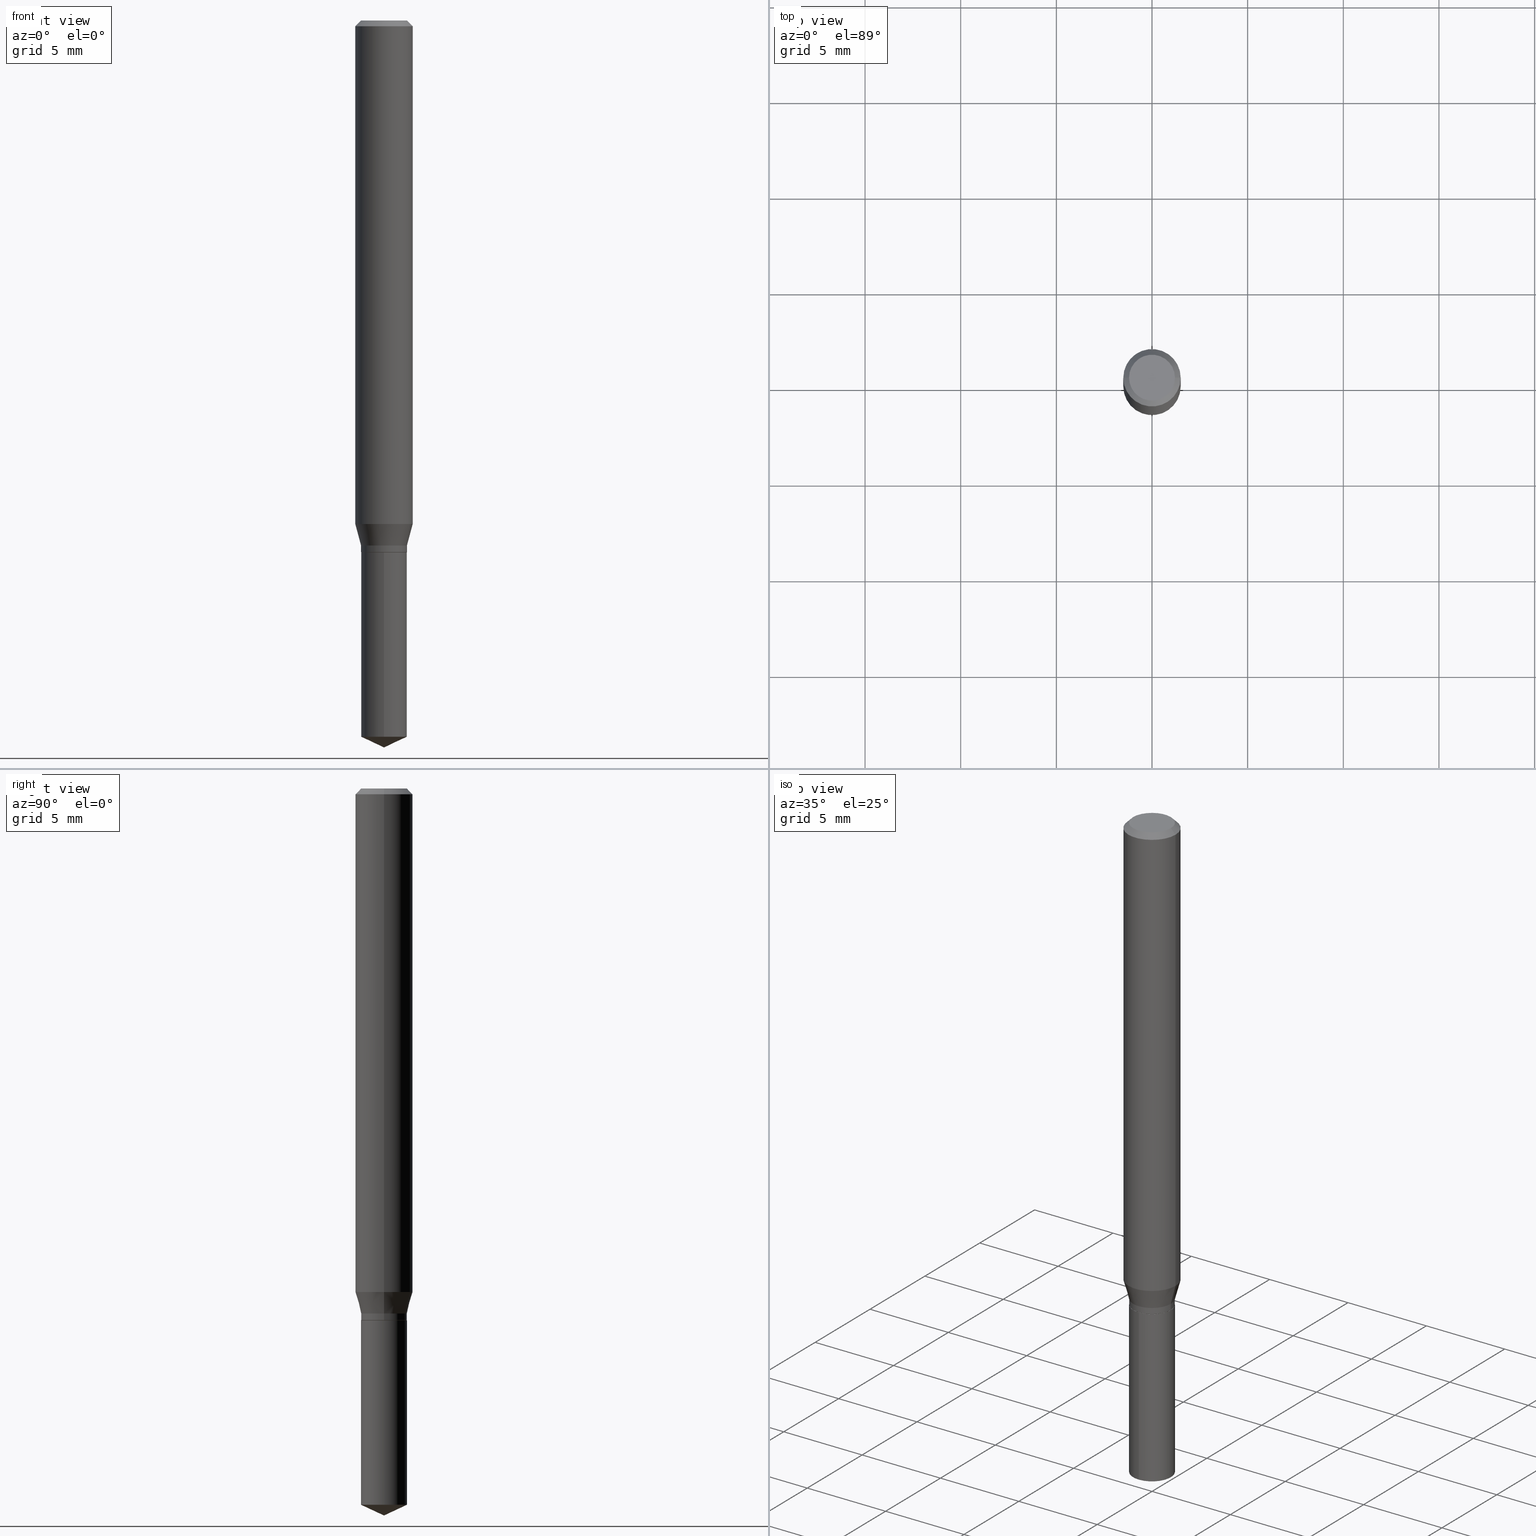
[diagram: canonical four-view strip — front | top / right | iso, engineering-drawing reading convention]
A machine part, canonical four-view strip (front | top / right | iso — engineering-drawing reading convention). The complete STEP part file that produces these views, byte-faithful:
ISO-10303-21;
HEADER;
FILE_DESCRIPTION (( 'STEP AP203' ),
    '1' );
FILE_NAME ('07648.STEP',
    '2024-04-24T00:21:22',
    ( '' ),
    ( '' ),
    'SwSTEP 2.0',
    'SolidWorks 2023',
    '' );
FILE_SCHEMA (( 'CONFIG_CONTROL_DESIGN' ));
ENDSEC;

DATA;
#1 = ORIENTED_EDGE ( 'NONE', *, *, #478, .T. ) ;
#2 = ORIENTED_EDGE ( 'NONE', *, *, #287, .T. ) ;
#3 = CC_DESIGN_PERSON_AND_ORGANIZATION_ASSIGNMENT ( #100, #97, ( #377 ) ) ;
#4 = CARTESIAN_POINT ( 'NONE',  ( -0.04724999999999999339, 3.357314426466472909E-16, -2.324196830145442815E-30 ) ) ;
#5 = ORIENTED_EDGE ( 'NONE', *, *, #89, .T. ) ;
#6 = ORIENTED_EDGE ( 'NONE', *, *, #177, .T. ) ;
#7 = CIRCLE ( 'NONE', #475, 0.05905000000000013016 ) ;
#8 = FACE_OUTER_BOUND ( 'NONE', #123, .T. ) ;
#9 = ADVANCED_FACE ( 'NONE', ( #336 ), #488, .T. ) ;
#10 = EDGE_LOOP ( 'NONE', ( #272, #6, #321, #241 ) ) ;
#11 = CARTESIAN_POINT ( 'NONE',  ( 2.534145908092310761E-29, -3.618088738499401785E-15, -1.036261800470686723 ) ) ;
#12 = PERSON_AND_ORGANIZATION_ROLE ( 'creator' ) ;
#13 = CARTESIAN_POINT ( 'NONE',  ( 3.357314426466833320E-16, 0.04724999999999485167, -1.474066963152176557 ) ) ;
#14 = VECTOR ( 'NONE', #420, 39.37007874015748143 ) ;
#15 = EDGE_CURVE ( 'NONE', #209, #184, #30, .T. ) ;
#16 = CIRCLE ( 'NONE', #333, 0.04724999999999999339 ) ;
#17 = DIRECTION ( 'NONE',  ( -2.445468806185136597E-29, 3.491481338843145583E-15, 1.000000000000000000 ) ) ;
#18 = COORDINATED_UNIVERSAL_TIME_OFFSET ( 5, 0, .BEHIND. ) ;
#19 = ORIENTED_EDGE ( 'NONE', *, *, #57, .F. ) ;
#20 = ORIENTED_EDGE ( 'NONE', *, *, #29, .T. ) ;
#21 = CARTESIAN_POINT ( 'NONE',  ( 8.265746106709734507E-48, -1.180129479067563789E-33, -3.380025165646692144E-19 ) ) ;
#22 = AXIS2_PLACEMENT_3D ( 'NONE', #194, #80, #70 ) ;
#23 = CARTESIAN_POINT ( 'NONE',  ( -0.04724999999999999339, -3.460032494876678049E-15, -1.093999999999999861 ) ) ;
#24 = CC_DESIGN_APPROVAL ( #203, ( #374 ) ) ;
#25 = ADVANCED_FACE ( 'NONE', ( #442 ), #487, .T. ) ;
#26 = EDGE_LOOP ( 'NONE', ( #229, #20, #367, #128 ) ) ;
#27 = CARTESIAN_POINT ( 'NONE',  ( 2.676565608369631794E-29, -3.821426325363822773E-15, -1.094499999999999806 ) ) ;
#28 = DIRECTION ( 'NONE',  ( -2.445468806185136597E-29, 3.491481338843145583E-15, 1.000000000000000000 ) ) ;
#29 = EDGE_CURVE ( 'NONE', #226, #209, #309, .T. ) ;
#30 = CIRCLE ( 'NONE', #317, 0.05904999999999999832 ) ;
#31 = VECTOR ( 'NONE', #110, 39.37007874015748143 ) ;
#32 = LOCAL_TIME ( 20, 21, 22.00000000000000000, #441 ) ;
#33 = FACE_OUTER_BOUND ( 'NONE', #382, .T. ) ;
#34 = DIRECTION ( 'NONE',  ( 0.7071067811865453523, -7.319954787623248157E-15, -0.7071067811865496822 ) ) ;
#35 = DIRECTION ( 'NONE',  ( 6.982962677686265922E-15, 1.000000000000000000, -3.491495526022433599E-15 ) ) ;
#36 = ORIENTED_EDGE ( 'NONE', *, *, #29, .F. ) ;
#37 = DIRECTION ( 'NONE',  ( -6.982962677686267499E-15, -1.000000000000000000, 3.520397390770475169E-15 ) ) ;
#38 = AXIS2_PLACEMENT_3D ( 'NONE', #175, #330, #472 ) ;
#39 = EDGE_CURVE ( 'NONE', #422, #184, #161, .T. ) ;
#40 = ORIENTED_EDGE ( 'NONE', *, *, #362, .F. ) ;
#41 =( CONVERSION_BASED_UNIT ( 'INCH', #44 ) LENGTH_UNIT ( ) NAMED_UNIT ( #208 ) );
#42 = CARTESIAN_POINT ( 'NONE',  ( 3.357314426466833320E-16, 0.04724999999999617006, -1.094500000000000028 ) ) ;
#43 = EDGE_LOOP ( 'NONE', ( #389, #46 ) ) ;
#44 = LENGTH_MEASURE_WITH_UNIT ( LENGTH_MEASURE( 0.02539999999999999897 ), #124 );
#45 = CYLINDRICAL_SURFACE ( 'NONE', #310, 0.04724999999999999339 ) ;
#46 = ORIENTED_EDGE ( 'NONE', *, *, #381, .F. ) ;
#47 = MECHANICAL_CONTEXT ( 'NONE', #388, 'mechanical' ) ;
#48 = ADVANCED_FACE ( 'NONE', ( #105 ), #75, .T. ) ;
#49 = CARTESIAN_POINT ( 'NONE',  ( -0.05904999999999999832, 3.711095515056362547E-16, -0.01181000000000007218 ) ) ;
#50 = ORIENTED_EDGE ( 'NONE', *, *, #39, .T. ) ;
#51 = AXIS2_PLACEMENT_3D ( 'NONE', #398, #325, #99 ) ;
#52 = AXIS2_PLACEMENT_3D ( 'NONE', #129, #213, #284 ) ;
#53 = CARTESIAN_POINT ( 'NONE',  ( 0.04674999999999999295, -4.147879830545655774E-15, -1.094499999999999806 ) ) ;
#54 = PERSON_AND_ORGANIZATION ( #357, #193 ) ;
#55 = CYLINDRICAL_SURFACE ( 'NONE', #51, 0.04724999999999999339 ) ;
#56 = CARTESIAN_POINT ( 'NONE',  ( 0.04674999999999999295, -4.147879830545655774E-15, -1.094499999999999806 ) ) ;
#57 = EDGE_CURVE ( 'NONE', #202, #235, #270, .T. ) ;
#58 = SHAPE_DEFINITION_REPRESENTATION ( #289, #463 ) ;
#59 = CC_DESIGN_PERSON_AND_ORGANIZATION_ASSIGNMENT ( #296, #12, ( #377 ) ) ;
#60 = AXIS2_PLACEMENT_3D ( 'NONE', #159, #312, #455 ) ;
#61 = CC_DESIGN_APPROVAL ( #358, ( #166 ) ) ;
#62 = CYLINDRICAL_SURFACE ( 'NONE', #250, 0.05905000000000006771 ) ;
#63 = PERSON_AND_ORGANIZATION ( #357, #193 ) ;
#64 = VERTEX_POINT ( 'NONE', #453 ) ;
#65 = DIRECTION ( 'NONE',  ( -2.445458899330790108E-29, 3.491495526022433205E-15, 1.000000000000000000 ) ) ;
#66 = DATE_AND_TIME ( #262, #32 ) ;
#67 = ORIENTED_EDGE ( 'NONE', *, *, #120, .F. ) ;
#68 = DIRECTION ( 'NONE',  ( -2.445468806185136597E-29, 3.491481338843145583E-15, 1.000000000000000000 ) ) ;
#69 = CARTESIAN_POINT ( 'NONE',  ( 2.676565608369631794E-29, -3.821426325363822773E-15, -1.094499999999999806 ) ) ;
#70 = DIRECTION ( 'NONE',  ( 1.000000000000000000, -6.982962677686266711E-15, 0.000000000000000000 ) ) ;
#71 = EDGE_CURVE ( 'NONE', #121, #88, #263, .T. ) ;
#72 = CC_DESIGN_PERSON_AND_ORGANIZATION_ASSIGNMENT ( #394, #335, ( #166 ) ) ;
#73 = ORIENTED_EDGE ( 'NONE', *, *, #354, .T. ) ;
#74 = VECTOR ( 'NONE', #34, 39.37007874015748143 ) ;
#75 = CONICAL_SURFACE ( 'NONE', #84, 0.05904999999999999832, 0.7853981633974452814 ) ;
#76 = ORIENTED_EDGE ( 'NONE', *, *, #120, .T. ) ;
#77 = CARTESIAN_POINT ( 'NONE',  ( 2.676565608369631794E-29, -3.821426325363822773E-15, -1.094499999999999806 ) ) ;
#78 = DIRECTION ( 'NONE',  ( -6.982962677686265922E-15, -1.000000000000000000, 2.890844437739961472E-15 ) ) ;
#79 = DIRECTION ( 'NONE',  ( 1.000000000000000000, -6.982962677686266711E-15, 4.876176775795936353E-29 ) ) ;
#80 = DIRECTION ( 'NONE',  ( -2.445468806185136597E-29, 3.491481338843145583E-15, 1.000000000000000000 ) ) ;
#81 = EDGE_CURVE ( 'NONE', #88, #383, #136, .T. ) ;
#82 = ORIENTED_EDGE ( 'NONE', *, *, #416, .T. ) ;
#83 = CARTESIAN_POINT ( 'NONE',  ( 2.676565608369631794E-29, -3.821426325363822773E-15, -1.094499999999999806 ) ) ;
#84 = AXIS2_PLACEMENT_3D ( 'NONE', #342, #451, #118 ) ;
#85 = ORIENTED_EDGE ( 'NONE', *, *, #277, .F. ) ;
#86 = DIRECTION ( 'NONE',  ( -6.328713451373366223E-15, -0.9063077870366481603, 0.4226182617407031605 ) ) ;
#87 = CARTESIAN_POINT ( 'NONE',  ( 0.000000000000000000, 0.000000000000000000, 0.000000000000000000 ) ) ;
#88 = VERTEX_POINT ( 'NONE', #42 ) ;
#89 = EDGE_CURVE ( 'NONE', #192, #448, #340, .T. ) ;
#90 = CARTESIAN_POINT ( 'NONE',  ( 0.04724000000000000421, -3.852183633974369345E-16, -3.380025165621689721E-19 ) ) ;
#91 = ORIENTED_EDGE ( 'NONE', *, *, #195, .T. ) ;
#92 = PERSON_AND_ORGANIZATION ( #357, #193 ) ;
#93 = FACE_OUTER_BOUND ( 'NONE', #338, .T. ) ;
#94 = AXIS2_PLACEMENT_3D ( 'NONE', #481, #413, #116 ) ;
#95 = AXIS2_PLACEMENT_3D ( 'NONE', #21, #298, #437 ) ;
#96 = LINE ( 'NONE', #457, #376 ) ;
#97 = PERSON_AND_ORGANIZATION_ROLE ( 'design_supplier' ) ;
#98 = SECURITY_CLASSIFICATION_LEVEL ( 'unclassified' ) ;
#99 = DIRECTION ( 'NONE',  ( -6.982962677686265922E-15, -1.000000000000000000, 2.890844437739961472E-15 ) ) ;
#100 = PERSON_AND_ORGANIZATION ( #357, #193 ) ;
#101 = VECTOR ( 'NONE', #476, 39.37007874015748143 ) ;
#102 = AXIS2_PLACEMENT_3D ( 'NONE', #77, #236, #35 ) ;
#103 = CARTESIAN_POINT ( 'NONE',  ( 2.888098660104664204E-31, -4.123439461173780263E-17, -0.01181000000000007218 ) ) ;
#104 = EDGE_CURVE ( 'NONE', #422, #64, #347, .T. ) ;
#105 = FACE_OUTER_BOUND ( 'NONE', #26, .T. ) ;
#106 = DIRECTION ( 'NONE',  ( -2.445458899330790108E-29, 3.491495526022433205E-15, 1.000000000000000000 ) ) ;
#107 = DIRECTION ( 'NONE',  ( 1.000000000000000000, -6.982962677686265922E-15, 4.876176775795935793E-29 ) ) ;
#108 = AXIS2_PLACEMENT_3D ( 'NONE', #204, #207, #249 ) ;
#109 = APPROVAL_PERSON_ORGANIZATION ( #63, #468, #331 ) ;
#110 = DIRECTION ( 'NONE',  ( -2.445468806185136877E-29, 3.491481338843145188E-15, 1.000000000000000000 ) ) ;
#111 = CC_DESIGN_PERSON_AND_ORGANIZATION_ASSIGNMENT ( #134, #294, ( #374 ) ) ;
#112 = CARTESIAN_POINT ( 'NONE',  ( 2.641839951321803071E-29, -3.771847290352249705E-15, -1.080300000000000038 ) ) ;
#113 = ORIENTED_EDGE ( 'NONE', *, *, #248, .T. ) ;
#114 = ORIENTED_EDGE ( 'NONE', *, *, #471, .T. ) ;
#115 = DIRECTION ( 'NONE',  ( -0.7071067811865232589, 7.493145998870265808E-15, 0.7071067811865715536 ) ) ;
#116 = DIRECTION ( 'NONE',  ( -6.982962677686265922E-15, -1.000000000000000000, 5.781688875479922944E-15 ) ) ;
#117 = VECTOR ( 'NONE', #217, 39.37007874015748854 ) ;
#118 = DIRECTION ( 'NONE',  ( -1.000000000000000000, 6.982962677686266711E-15, 0.000000000000000000 ) ) ;
#119 = PLANE ( 'NONE',  #160 ) ;
#120 = EDGE_CURVE ( 'NONE', #64, #209, #122, .T. ) ;
#121 = VERTEX_POINT ( 'NONE', #13 ) ;
#122 = LINE ( 'NONE', #290, #126 ) ;
#123 = EDGE_LOOP ( 'NONE', ( #36, #405, #154, #73 ) ) ;
#124 =( LENGTH_UNIT ( ) NAMED_UNIT ( * ) SI_UNIT ( $, .METRE. ) );
#125 = DIRECTION ( 'NONE',  ( -0.2588190451025211281, 5.211531920934548675E-15, 0.9659258262890682012 ) ) ;
#126 = VECTOR ( 'NONE', #214, 39.37007874015748143 ) ;
#127 = APPROVAL_PERSON_ORGANIZATION ( #92, #203, #431 ) ;
#128 = ORIENTED_EDGE ( 'NONE', *, *, #138, .F. ) ;
#129 = CARTESIAN_POINT ( 'NONE',  ( 0.000000000000000000, 0.000000000000000000, 0.000000000000000000 ) ) ;
#130 = FACE_OUTER_BOUND ( 'NONE', #201, .T. ) ;
#131 = EDGE_LOOP ( 'NONE', ( #456, #351, #2, #428 ) ) ;
#132 = PERSON_AND_ORGANIZATION ( #357, #193 ) ;
#133 = DIRECTION ( 'NONE',  ( 1.000000000000000000, -6.982962677686265133E-15, 0.000000000000000000 ) ) ;
#134 = PERSON_AND_ORGANIZATION ( #357, #193 ) ;
#135 = CARTESIAN_POINT ( 'NONE',  ( 0.000000000000000000, 0.000000000000000000, 0.000000000000000000 ) ) ;
#136 = CIRCLE ( 'NONE', #363, 0.04724999999999999339 ) ;
#137 =( GEOMETRIC_REPRESENTATION_CONTEXT ( 3 ) GLOBAL_UNCERTAINTY_ASSIGNED_CONTEXT ( ( #224 ) ) GLOBAL_UNIT_ASSIGNED_CONTEXT ( ( #41, #348, #322 ) ) REPRESENTATION_CONTEXT ( 'NONE', 'WORKASPACE' ) );
#138 = EDGE_CURVE ( 'NONE', #212, #184, #172, .T. ) ;
#139 = PRODUCT_RELATED_PRODUCT_CATEGORY ( 'detail', '', ( #219 ) ) ;
#140 = DATE_TIME_ROLE ( 'classification_date' ) ;
#141 = DIRECTION ( 'NONE',  ( 1.000000000000000000, -6.982962677686266711E-15, 4.876176775795936353E-29 ) ) ;
#142 = EDGE_CURVE ( 'NONE', #212, #226, #199, .T. ) ;
#143 = APPROVAL_DATE_TIME ( #220, #468 ) ;
#144 = AXIS2_PLACEMENT_3D ( 'NONE', #153, #418, #78 ) ;
#145 = EDGE_LOOP ( 'NONE', ( #1, #167 ) ) ;
#146 = DIRECTION ( 'NONE',  ( -2.445458899330790108E-29, 3.491495526022433205E-15, 1.000000000000000000 ) ) ;
#147 = CARTESIAN_POINT ( 'NONE',  ( -0.05905000000000013016, -3.198513253033061503E-15, -1.036261800470686723 ) ) ;
#148 = ADVANCED_FACE ( 'NONE', ( #8 ), #399, .T. ) ;
#149 = FACE_OUTER_BOUND ( 'NONE', #43, .T. ) ;
#150 = CIRCLE ( 'NONE', #108, 0.04724999999999999339 ) ;
#151 = CONICAL_SURFACE ( 'NONE', #300, 0.04674999999999999295, 0.7853981633974141952 ) ;
#152 = DIRECTION ( 'NONE',  ( 0.2588190451025211281, 1.565188264969623940E-15, 0.9659258262890682012 ) ) ;
#153 = CARTESIAN_POINT ( 'NONE',  ( 2.676565608369631794E-29, -3.821426325363822773E-15, -1.094499999999999806 ) ) ;
#154 = ORIENTED_EDGE ( 'NONE', *, *, #138, .T. ) ;
#155 = EDGE_CURVE ( 'NONE', #261, #286, #150, .T. ) ;
#156 = CARTESIAN_POINT ( 'NONE',  ( 2.676565608369631794E-29, -3.821426325363822773E-15, -1.094499999999999806 ) ) ;
#157 = AXIS2_PLACEMENT_3D ( 'NONE', #257, #17, #178 ) ;
#158 = AXIS2_PLACEMENT_3D ( 'NONE', #343, #380, #230 ) ;
#159 = CARTESIAN_POINT ( 'NONE',  ( 2.675342873966538993E-29, -3.819680584694400481E-15, -1.093999999999999861 ) ) ;
#160 = AXIS2_PLACEMENT_3D ( 'NONE', #480, #304, #479 ) ;
#161 = LINE ( 'NONE', #301, #101 ) ;
#162 = ORIENTED_EDGE ( 'NONE', *, *, #478, .F. ) ;
#163 = DIRECTION ( 'NONE',  ( 1.000000000000000000, -6.982962677686266711E-15, 0.000000000000000000 ) ) ;
#164 = ORIENTED_EDGE ( 'NONE', *, *, #104, .T. ) ;
#165 = CIRCLE ( 'NONE', #438, 0.04724999999999999339 ) ;
#166 = SECURITY_CLASSIFICATION ( '', '', #98 ) ;
#167 = ORIENTED_EDGE ( 'NONE', *, *, #81, .T. ) ;
#168 = LINE ( 'NONE', #4, #423 ) ;
#169 = ORIENTED_EDGE ( 'NONE', *, *, #313, .T. ) ;
#170 = CARTESIAN_POINT ( 'NONE',  ( 0.05904999999999999832, -4.535783407291118600E-16, -0.01181000000000007218 ) ) ;
#171 = APPROVAL_ROLE ( '' ) ;
#172 = LINE ( 'NONE', #49, #407 ) ;
#173 = AXIS2_PLACEMENT_3D ( 'NONE', #69, #447, #375 ) ;
#174 = CALENDAR_DATE ( 2024, 23, 4 ) ;
#175 = CARTESIAN_POINT ( 'NONE',  ( -9.261924752013118283E-28, 1.322368428517963298E-13, 37.87397874015748300 ) ) ;
#176 = CALENDAR_DATE ( 2024, 23, 4 ) ;
#177 = EDGE_CURVE ( 'NONE', #235, #286, #168, .T. ) ;
#178 = DIRECTION ( 'NONE',  ( 1.000000000000000000, -6.982962677686266711E-15, 0.000000000000000000 ) ) ;
#179 = CALENDAR_DATE ( 2024, 23, 4 ) ;
#180 = CARTESIAN_POINT ( 'NONE',  ( 0.04724999999999999339, -3.299449865206760567E-16, 2.303993526563579480E-30 ) ) ;
#181 = ORIENTED_EDGE ( 'NONE', *, *, #71, .F. ) ;
#182 = DATE_AND_TIME ( #174, #440 ) ;
#183 = ORIENTED_EDGE ( 'NONE', *, *, #346, .T. ) ;
#184 = VERTEX_POINT ( 'NONE', #421 ) ;
#185 = ORIENTED_EDGE ( 'NONE', *, *, #362, .T. ) ;
#186 = DIRECTION ( 'NONE',  ( -6.982962677686265922E-15, -1.000000000000000000, 5.781688875479922944E-15 ) ) ;
#187 = EDGE_CURVE ( 'NONE', #64, #422, #7, .T. ) ;
#188 = CARTESIAN_POINT ( 'NONE',  ( 0.04724999999999999339, -4.101792276872925713E-15, -1.080300000000000038 ) ) ;
#189 = DESIGN_CONTEXT ( 'detailed design', #222, 'design' ) ;
#190 = DIRECTION ( 'NONE',  ( 1.000000000000000000, -6.982962677686266711E-15, 0.000000000000000000 ) ) ;
#191 = AXIS2_PLACEMENT_3D ( 'NONE', #135, #240, #253 ) ;
#192 = VERTEX_POINT ( 'NONE', #53 ) ;
#193 = ORGANIZATION ( 'UNSPECIFIED', 'UNSPECIFIED', '' ) ;
#194 = CARTESIAN_POINT ( 'NONE',  ( 2.641839951321803071E-29, -3.771847290352249705E-15, -1.080300000000000038 ) ) ;
#195 = EDGE_CURVE ( 'NONE', #286, #422, #96, .T. ) ;
#196 = EDGE_LOOP ( 'NONE', ( #412, #114, #283 ) ) ;
#197 = FACE_OUTER_BOUND ( 'NONE', #279, .T. ) ;
#198 = CARTESIAN_POINT ( 'NONE',  ( -9.261924752013118283E-28, 1.322368428517963298E-13, 37.87397874015748300 ) ) ;
#199 = CIRCLE ( 'NONE', #482, 0.04724000000000000421 ) ;
#200 = LOCAL_TIME ( 20, 21, 22.00000000000000000, #18 ) ;
#201 = EDGE_LOOP ( 'NONE', ( #391, #164, #76, #414 ) ) ;
#202 = VERTEX_POINT ( 'NONE', #361 ) ;
#203 = APPROVAL ( #247, 'UNSPECIFIED' ) ;
#204 = CARTESIAN_POINT ( 'NONE',  ( 2.641839951321803071E-29, -3.771847290352249705E-15, -1.080300000000000038 ) ) ;
#205 = ORIENTED_EDGE ( 'NONE', *, *, #15, .F. ) ;
#206 = CC_DESIGN_DATE_AND_TIME_ASSIGNMENT ( #66, #140, ( #166 ) ) ;
#207 = DIRECTION ( 'NONE',  ( -2.445468806185136597E-29, 3.491481338843145583E-15, 1.000000000000000000 ) ) ;
#208 = DIMENSIONAL_EXPONENTS ( 1.000000000000000000, 0.000000000000000000, 0.000000000000000000, 0.000000000000000000, 0.000000000000000000, 0.000000000000000000, 0.000000000000000000 ) ;
#209 = VERTEX_POINT ( 'NONE', #170 ) ;
#210 = DIRECTION ( 'NONE',  ( 6.439704144417022464E-15, 0.9063077870366512689, 0.4226182617406968323 ) ) ;
#211 = CONICAL_SURFACE ( 'NONE', #371, 0.04724999999999999339, 0.2617993877991497964 ) ;
#212 = VERTEX_POINT ( 'NONE', #467 ) ;
#213 = DIRECTION ( 'NONE',  ( 0.000000000000000000, 0.000000000000000000, 1.000000000000000000 ) ) ;
#214 = DIRECTION ( 'NONE',  ( -2.445468806185136877E-29, 3.491481338843145188E-15, 1.000000000000000000 ) ) ;
#215 = ADVANCED_FACE ( 'NONE', ( #130 ), #427, .T. ) ;
#216 = COORDINATED_UNIVERSAL_TIME_OFFSET ( 5, 0, .BEHIND. ) ;
#217 = DIRECTION ( 'NONE',  ( 0.7071067811865232589, -2.468850131082003836E-15, 0.7071067811865715536 ) ) ;
#218 = CC_DESIGN_DATE_AND_TIME_ASSIGNMENT ( #182, #473, ( #374 ) ) ;
#219 = PRODUCT ( '07648', '07648', '', ( #47 ) ) ;
#220 = DATE_AND_TIME ( #291, #281 ) ;
#221 = ADVANCED_FACE ( 'NONE', ( #282 ), #45, .T. ) ;
#222 = APPLICATION_CONTEXT ( 'configuration controlled 3d designs of mechanical parts and assemblies' ) ;
#223 = CARTESIAN_POINT ( 'NONE',  ( 0.000000000000000000, 0.000000000000000000, 0.000000000000000000 ) ) ;
#224 = UNCERTAINTY_MEASURE_WITH_UNIT (LENGTH_MEASURE( 1.000000000000000082E-05 ), #41, 'distance_accuracy_value', 'NONE');
#225 = LINE ( 'NONE', #180, #31 ) ;
#226 = VERTEX_POINT ( 'NONE', #90 ) ;
#227 = AXIS2_PLACEMENT_3D ( 'NONE', #419, #350, #79 ) ;
#228 = CONICAL_SURFACE ( 'NONE', #22, 0.04724999999999999339, 0.2617993877991497964 ) ;
#229 = ORIENTED_EDGE ( 'NONE', *, *, #346, .F. ) ;
#230 = DIRECTION ( 'NONE',  ( 1.000000000000000000, -6.982962677686266711E-15, 0.000000000000000000 ) ) ;
#231 = EDGE_CURVE ( 'NONE', #426, #121, #245, .T. ) ;
#232 = AXIS2_PLACEMENT_3D ( 'NONE', #83, #387, #163 ) ;
#233 = EDGE_CURVE ( 'NONE', #192, #202, #359, .T. ) ;
#234 = ORIENTED_EDGE ( 'NONE', *, *, #416, .F. ) ;
#235 = VERTEX_POINT ( 'NONE', #23 ) ;
#236 = DIRECTION ( 'NONE',  ( 2.445458899330789267E-29, -3.491495526022433599E-15, -1.000000000000000000 ) ) ;
#237 = CARTESIAN_POINT ( 'NONE',  ( 2.888098660104664204E-31, -4.123439461173780263E-17, -0.01181000000000007218 ) ) ;
#238 = ORIENTED_EDGE ( 'NONE', *, *, #233, .T. ) ;
#239 = LOCAL_TIME ( 20, 21, 22.00000000000000000, #366 ) ;
#240 = DIRECTION ( 'NONE',  ( -2.445468806185136597E-29, 3.491481338843145583E-15, 1.000000000000000000 ) ) ;
#241 = ORIENTED_EDGE ( 'NONE', *, *, #287, .F. ) ;
#242 = DIRECTION ( 'NONE',  ( -6.982962677686265922E-15, -1.000000000000000000, 2.890844437739961472E-15 ) ) ;
#243 = ORIENTED_EDGE ( 'NONE', *, *, #71, .T. ) ;
#244 = CARTESIAN_POINT ( 'NONE',  ( 3.658651059288795076E-29, -5.223626456482161457E-15, -1.496099999999999985 ) ) ;
#245 = LINE ( 'NONE', #390, #469 ) ;
#246 = ORIENTED_EDGE ( 'NONE', *, *, #195, .F. ) ;
#247 = APPROVAL_STATUS ( 'not_yet_approved' ) ;
#248 = EDGE_CURVE ( 'NONE', #121, #316, #165, .T. ) ;
#249 = DIRECTION ( 'NONE',  ( 1.000000000000000000, -6.982962677686266711E-15, 0.000000000000000000 ) ) ;
#250 = AXIS2_PLACEMENT_3D ( 'NONE', #223, #474, #141 ) ;
#251 = MANIFOLD_SOLID_BREP ( 'Body-Move/Copy2[2]', #458 ) ;
#252 = APPROVAL_STATUS ( 'not_yet_approved' ) ;
#253 = DIRECTION ( 'NONE',  ( 1.000000000000000000, -6.982962677686266711E-15, 4.876176775795936353E-29 ) ) ;
#254 = DATE_AND_TIME ( #176, #239 ) ;
#255 = CARTESIAN_POINT ( 'NONE',  ( 0.04724999999999999339, -4.101792276872925713E-15, -1.080300000000000038 ) ) ;
#256 = FACE_OUTER_BOUND ( 'NONE', #268, .T. ) ;
#257 = CARTESIAN_POINT ( 'NONE',  ( 2.675342873966538993E-29, -3.819680584694400481E-15, -1.093999999999999861 ) ) ;
#258 = VECTOR ( 'NONE', #260, 39.37007874015748143 ) ;
#259 = VECTOR ( 'NONE', #115, 39.37007874015748854 ) ;
#260 = DIRECTION ( 'NONE',  ( -2.445458899330790108E-29, 3.491495526022433599E-15, 1.000000000000000000 ) ) ;
#261 = VERTEX_POINT ( 'NONE', #255 ) ;
#262 = CALENDAR_DATE ( 2024, 23, 4 ) ;
#263 = LINE ( 'NONE', #275, #14 ) ;
#264 = ADVANCED_FACE ( 'NONE', ( #364 ), #280, .T. ) ;
#265 = LINE ( 'NONE', #339, #259 ) ;
#266 = EDGE_CURVE ( 'NONE', #235, #202, #460, .T. ) ;
#267 = ORIENTED_EDGE ( 'NONE', *, *, #471, .F. ) ;
#268 = EDGE_LOOP ( 'NONE', ( #459, #50, #205, #67 ) ) ;
#269 = FACE_OUTER_BOUND ( 'NONE', #145, .T. ) ;
#270 = CIRCLE ( 'NONE', #60, 0.04724999999999999339 ) ;
#271 = CONICAL_SURFACE ( 'NONE', #400, 0.04674999999999999295, 0.7853981633974141952 ) ;
#272 = ORIENTED_EDGE ( 'NONE', *, *, #57, .T. ) ;
#273 = DIRECTION ( 'NONE',  ( -2.445458899330790108E-29, 3.491495526022433205E-15, 1.000000000000000000 ) ) ;
#274 = FACE_OUTER_BOUND ( 'NONE', #353, .T. ) ;
#275 = CARTESIAN_POINT ( 'NONE',  ( 3.357314426466740136E-16, 0.04724999999999617006, -1.094500000000000028 ) ) ;
#276 = CARTESIAN_POINT ( 'NONE',  ( 2.676565608369631794E-29, -3.821426325363822773E-15, -1.094499999999999806 ) ) ;
#277 = EDGE_CURVE ( 'NONE', #316, #383, #299, .T. ) ;
#278 = DIRECTION ( 'NONE',  ( -1.000000000000000000, 6.982962677686266711E-15, 0.000000000000000000 ) ) ;
#279 = EDGE_LOOP ( 'NONE', ( #5, #82, #19, #307 ) ) ;
#280 = CONICAL_SURFACE ( 'NONE', #38, 84.42940631927382356, 1.134464013796313564 ) ;
#281 = LOCAL_TIME ( 20, 21, 22.00000000000000000, #397 ) ;
#282 = FACE_OUTER_BOUND ( 'NONE', #131, .T. ) ;
#283 = ORIENTED_EDGE ( 'NONE', *, *, #248, .F. ) ;
#284 = DIRECTION ( 'NONE',  ( 1.000000000000000000, 0.000000000000000000, 0.000000000000000000 ) ) ;
#285 = DIRECTION ( 'NONE',  ( 1.000000000000000000, -6.982962677686266711E-15, 4.876176775795936353E-29 ) ) ;
#286 = VERTEX_POINT ( 'NONE', #403 ) ;
#287 = EDGE_CURVE ( 'NONE', #202, #261, #225, .T. ) ;
#288 = PERSON_AND_ORGANIZATION_ROLE ( 'design_owner' ) ;
#289 = PRODUCT_DEFINITION_SHAPE ( 'NONE', 'NONE',  #374 ) ;
#290 = CARTESIAN_POINT ( 'NONE',  ( 0.05905000000000006771, -4.123439461173745257E-16, 2.879382386107503723E-30 ) ) ;
#291 = CALENDAR_DATE ( 2024, 23, 4 ) ;
#292 = AXIS2_PLACEMENT_3D ( 'NONE', #198, #146, #37 ) ;
#293 = CARTESIAN_POINT ( 'NONE',  ( 2.534145908092310761E-29, -3.618088738499401785E-15, -1.036261800470686723 ) ) ;
#294 = PERSON_AND_ORGANIZATION_ROLE ( 'creator' ) ;
#295 = ADVANCED_FACE ( 'NONE', ( #409 ), #344, .T. ) ;
#296 = PERSON_AND_ORGANIZATION ( #357, #193 ) ;
#297 = APPROVAL_STATUS ( 'not_yet_approved' ) ;
#298 = DIRECTION ( 'NONE',  ( -2.445468806185136597E-29, 3.491481338843145583E-15, 1.000000000000000000 ) ) ;
#299 = LINE ( 'NONE', #439, #258 ) ;
#300 = AXIS2_PLACEMENT_3D ( 'NONE', #406, #308, #450 ) ;
#301 = CARTESIAN_POINT ( 'NONE',  ( -0.05905000000000006771, 4.195754854663396409E-16, -2.904631170795525045E-30 ) ) ;
#302 = EDGE_LOOP ( 'NONE', ( #181, #113, #379, #320 ) ) ;
#303 = CC_DESIGN_SECURITY_CLASSIFICATION ( #166, ( #377 ) ) ;
#304 = DIRECTION ( 'NONE',  ( 2.438088387897960049E-29, -3.491481338843145188E-15, -1.000000000000000000 ) ) ;
#305 = ADVANCED_FACE ( 'NONE', ( #274 ), #228, .T. ) ;
#306 = FACE_OUTER_BOUND ( 'NONE', #314, .T. ) ;
#307 = ORIENTED_EDGE ( 'NONE', *, *, #233, .F. ) ;
#308 = DIRECTION ( 'NONE',  ( -2.445468806185136597E-29, 3.491481338843145583E-15, 1.000000000000000000 ) ) ;
#309 = LINE ( 'NONE', #334, #74 ) ;
#310 = AXIS2_PLACEMENT_3D ( 'NONE', #87, #395, #285 ) ;
#311 = CARTESIAN_POINT ( 'NONE',  ( -0.04674999999999999295, -3.486598369221864243E-15, -1.094499999999999806 ) ) ;
#312 = DIRECTION ( 'NONE',  ( -2.445468806185136597E-29, 3.491481338843145583E-15, 1.000000000000000000 ) ) ;
#313 = EDGE_CURVE ( 'NONE', #316, #121, #356, .T. ) ;
#314 = EDGE_LOOP ( 'NONE', ( #234, #345, #238, #386 ) ) ;
#315 = EDGE_LOOP ( 'NONE', ( #267, #444, #402 ) ) ;
#316 = VERTEX_POINT ( 'NONE', #349 ) ;
#317 = AXIS2_PLACEMENT_3D ( 'NONE', #237, #485, #477 ) ;
#318 = DIRECTION ( 'NONE',  ( -0.7071067811865453523, 2.468850131082234184E-15, -0.7071067811865496822 ) ) ;
#319 = ADVANCED_FACE ( 'NONE', ( #93 ), #55, .T. ) ;
#320 = ORIENTED_EDGE ( 'NONE', *, *, #81, .F. ) ;
#321 = ORIENTED_EDGE ( 'NONE', *, *, #155, .F. ) ;
#322 =( NAMED_UNIT ( * ) SI_UNIT ( $, .STERADIAN. ) SOLID_ANGLE_UNIT ( ) );
#323 = DIRECTION ( 'NONE',  ( 1.000000000000000000, -6.982962677686266711E-15, 4.876185090822587894E-29 ) ) ;
#324 = CC_DESIGN_PERSON_AND_ORGANIZATION_ASSIGNMENT ( #132, #288, ( #219 ) ) ;
#325 = DIRECTION ( 'NONE',  ( -2.445458899330790108E-29, 3.491495526022433205E-15, 1.000000000000000000 ) ) ;
#326 = CLOSED_SHELL ( 'NONE', ( #319, #264, #25, #295, #449 ) ) ;
#327 = AXIS2_PLACEMENT_3D ( 'NONE', #352, #434, #278 ) ;
#328 = DIRECTION ( 'NONE',  ( -2.445468806185136597E-29, 3.491481338843145583E-15, 1.000000000000000000 ) ) ;
#329 = CIRCLE ( 'NONE', #158, 0.04724999999999999339 ) ;
#330 = DIRECTION ( 'NONE',  ( -2.445458899330790108E-29, 3.491495526022433205E-15, 1.000000000000000000 ) ) ;
#331 = APPROVAL_ROLE ( '' ) ;
#332 = ADVANCED_FACE ( 'NONE', ( #256 ), #62, .T. ) ;
#333 = AXIS2_PLACEMENT_3D ( 'NONE', #276, #273, #242 ) ;
#334 = CARTESIAN_POINT ( 'NONE',  ( 0.05904999999999999832, -4.463468013801466955E-16, -0.01181000000000007218 ) ) ;
#335 = PERSON_AND_ORGANIZATION_ROLE ( 'classification_officer' ) ;
#336 = FACE_OUTER_BOUND ( 'NONE', #10, .T. ) ;
#337 = FACE_OUTER_BOUND ( 'NONE', #465, .T. ) ;
#338 = EDGE_LOOP ( 'NONE', ( #169, #243, #162, #85 ) ) ;
#339 = CARTESIAN_POINT ( 'NONE',  ( -0.04674999999999999295, -3.489247596395975839E-15, -1.094499999999999806 ) ) ;
#340 = CIRCLE ( 'NONE', #232, 0.04674999999999999295 ) ;
#341 = CARTESIAN_POINT ( 'NONE',  ( 3.658651059288794515E-29, -5.223626456482161457E-15, -1.496099999999999985 ) ) ;
#342 = CARTESIAN_POINT ( 'NONE',  ( 2.888098660104664204E-31, -4.123439461173780263E-17, -0.01181000000000007218 ) ) ;
#343 = CARTESIAN_POINT ( 'NONE',  ( 2.641839951321803071E-29, -3.771847290352249705E-15, -1.080300000000000038 ) ) ;
#344 = CYLINDRICAL_SURFACE ( 'NONE', #144, 0.04724999999999999339 ) ;
#345 = ORIENTED_EDGE ( 'NONE', *, *, #381, .T. ) ;
#346 = EDGE_CURVE ( 'NONE', #226, #212, #392, .T. ) ;
#347 = CIRCLE ( 'NONE', #446, 0.05905000000000013016 ) ;
#348 =( NAMED_UNIT ( * ) PLANE_ANGLE_UNIT ( ) SI_UNIT ( $, .RADIAN. ) );
#349 = CARTESIAN_POINT ( 'NONE',  ( -3.299449865206399663E-16, -0.04725000000000514205, -1.474066963152175891 ) ) ;
#350 = DIRECTION ( 'NONE',  ( -2.445468806185136597E-29, 3.491481338843145583E-15, 1.000000000000000000 ) ) ;
#351 = ORIENTED_EDGE ( 'NONE', *, *, #266, .T. ) ;
#352 = CARTESIAN_POINT ( 'NONE',  ( 2.888098660104664204E-31, -4.123439461173780263E-17, -0.01181000000000007218 ) ) ;
#353 = EDGE_LOOP ( 'NONE', ( #369, #91, #360, #40 ) ) ;
#354 = EDGE_CURVE ( 'NONE', #184, #209, #370, .T. ) ;
#355 = ORIENTED_EDGE ( 'NONE', *, *, #454, .T. ) ;
#356 = CIRCLE ( 'NONE', #94, 0.04724999999999999339 ) ;
#357 = PERSON ( 'UNSPECIFIED', 'UNSPECIFIED', 'UNSPECIFIED', ('UNSPECIFIED'), ('UNSPECIFIED'), ('UNSPECIFIED') ) ;
#358 = APPROVAL ( #297, 'UNSPECIFIED' ) ;
#359 = LINE ( 'NONE', #56, #117 ) ;
#360 = ORIENTED_EDGE ( 'NONE', *, *, #187, .F. ) ;
#361 = CARTESIAN_POINT ( 'NONE',  ( 0.04724999999999999339, -4.149625571215076488E-15, -1.093999999999999861 ) ) ;
#362 = EDGE_CURVE ( 'NONE', #261, #64, #486, .T. ) ;
#363 = AXIS2_PLACEMENT_3D ( 'NONE', #404, #65, #373 ) ;
#364 = FACE_OUTER_BOUND ( 'NONE', #315, .T. ) ;
#365 = AXIS2_PLACEMENT_3D ( 'NONE', #27, #484, #107 ) ;
#366 = COORDINATED_UNIVERSAL_TIME_OFFSET ( 5, 0, .BEHIND. ) ;
#367 = ORIENTED_EDGE ( 'NONE', *, *, #15, .T. ) ;
#368 = ADVANCED_FACE ( 'NONE', ( #33 ), #211, .T. ) ;
#369 = ORIENTED_EDGE ( 'NONE', *, *, #155, .T. ) ;
#370 = CIRCLE ( 'NONE', #432, 0.05904999999999999832 ) ;
#371 = AXIS2_PLACEMENT_3D ( 'NONE', #112, #68, #410 ) ;
#372 = CC_DESIGN_APPROVAL ( #468, ( #377 ) ) ;
#373 = DIRECTION ( 'NONE',  ( -6.982962677686265922E-15, -1.000000000000000000, 2.890844437739961472E-15 ) ) ;
#374 = PRODUCT_DEFINITION ( 'UNKNOWN', '', #377, #189 ) ;
#375 = DIRECTION ( 'NONE',  ( 1.000000000000000000, -6.982962677686266711E-15, 0.000000000000000000 ) ) ;
#376 = VECTOR ( 'NONE', #125, 39.37007874015748143 ) ;
#377 = PRODUCT_DEFINITION_FORMATION_WITH_SPECIFIED_SOURCE ( 'ANY', '', #219, .NOT_KNOWN. ) ;
#378 = ORIENTED_EDGE ( 'NONE', *, *, #142, .T. ) ;
#379 = ORIENTED_EDGE ( 'NONE', *, *, #277, .T. ) ;
#380 = DIRECTION ( 'NONE',  ( -2.445468806185136597E-29, 3.491481338843145583E-15, 1.000000000000000000 ) ) ;
#381 = EDGE_CURVE ( 'NONE', #448, #192, #384, .T. ) ;
#382 = EDGE_LOOP ( 'NONE', ( #246, #355, #185, #464 ) ) ;
#383 = VERTEX_POINT ( 'NONE', #408 ) ;
#384 = CIRCLE ( 'NONE', #173, 0.04674999999999999295 ) ;
#385 = DIRECTION ( 'NONE',  ( 1.000000000000000000, -6.982962677686265133E-15, 0.000000000000000000 ) ) ;
#386 = ORIENTED_EDGE ( 'NONE', *, *, #266, .F. ) ;
#387 = DIRECTION ( 'NONE',  ( -2.445468806185136597E-29, 3.491481338843145583E-15, 1.000000000000000000 ) ) ;
#388 = APPLICATION_CONTEXT ( 'configuration controlled 3d designs of mechanical parts and assemblies' ) ;
#389 = ORIENTED_EDGE ( 'NONE', *, *, #89, .F. ) ;
#390 = CARTESIAN_POINT ( 'NONE',  ( 3.658672935554494692E-29, -5.223595400746700193E-15, -1.496099999999999985 ) ) ;
#391 = ORIENTED_EDGE ( 'NONE', *, *, #39, .F. ) ;
#392 = CIRCLE ( 'NONE', #95, 0.04724000000000000421 ) ;
#393 = DIRECTION ( 'NONE',  ( -2.445468806185136597E-29, 3.491481338843145583E-15, 1.000000000000000000 ) ) ;
#394 = PERSON_AND_ORGANIZATION ( #357, #193 ) ;
#395 = DIRECTION ( 'NONE',  ( -2.445468806185136597E-29, 3.491481338843145583E-15, 1.000000000000000000 ) ) ;
#396 = APPROVAL_DATE_TIME ( #470, #203 ) ;
#397 = COORDINATED_UNIVERSAL_TIME_OFFSET ( 5, 0, .BEHIND. ) ;
#398 = CARTESIAN_POINT ( 'NONE',  ( 2.676565608369631794E-29, -3.821426325363822773E-15, -1.094499999999999806 ) ) ;
#399 = CONICAL_SURFACE ( 'NONE', #327, 0.05904999999999999832, 0.7853981633974452814 ) ;
#400 = AXIS2_PLACEMENT_3D ( 'NONE', #156, #28, #411 ) ;
#401 = ADVANCED_FACE ( 'NONE', ( #337 ), #119, .F. ) ;
#402 = ORIENTED_EDGE ( 'NONE', *, *, #313, .F. ) ;
#403 = CARTESIAN_POINT ( 'NONE',  ( -0.04724999999999999339, -3.460032494876678049E-15, -1.080300000000000038 ) ) ;
#404 = CARTESIAN_POINT ( 'NONE',  ( 2.676565608369631794E-29, -3.821426325363822773E-15, -1.094499999999999806 ) ) ;
#405 = ORIENTED_EDGE ( 'NONE', *, *, #142, .F. ) ;
#406 = CARTESIAN_POINT ( 'NONE',  ( 2.676565608369631794E-29, -3.821426325363822773E-15, -1.094499999999999806 ) ) ;
#407 = VECTOR ( 'NONE', #318, 39.37007874015748143 ) ;
#408 = CARTESIAN_POINT ( 'NONE',  ( -3.299449865206492354E-16, -0.04725000000000382366, -1.094499999999999806 ) ) ;
#409 = FACE_OUTER_BOUND ( 'NONE', #302, .T. ) ;
#410 = DIRECTION ( 'NONE',  ( 1.000000000000000000, -6.982962677686266711E-15, 0.000000000000000000 ) ) ;
#411 = DIRECTION ( 'NONE',  ( 1.000000000000000000, -6.982962677686266711E-15, 0.000000000000000000 ) ) ;
#412 = ORIENTED_EDGE ( 'NONE', *, *, #231, .F. ) ;
#413 = DIRECTION ( 'NONE',  ( -2.445458899330790108E-29, 3.491495526022433205E-15, 1.000000000000000000 ) ) ;
#414 = ORIENTED_EDGE ( 'NONE', *, *, #354, .F. ) ;
#415 = PLANE ( 'NONE',  #102 ) ;
#416 = EDGE_CURVE ( 'NONE', #448, #235, #265, .T. ) ;
#417 = MANIFOLD_SOLID_BREP ( 'Body-Move/Copy2[1]', #326 ) ;
#418 = DIRECTION ( 'NONE',  ( -2.445458899330790108E-29, 3.491495526022433205E-15, 1.000000000000000000 ) ) ;
#419 = CARTESIAN_POINT ( 'NONE',  ( 0.000000000000000000, 0.000000000000000000, 0.000000000000000000 ) ) ;
#420 = DIRECTION ( 'NONE',  ( -2.445458899330790108E-29, 3.491495526022433599E-15, 1.000000000000000000 ) ) ;
#421 = CARTESIAN_POINT ( 'NONE',  ( -0.05904999999999999832, -1.410086081089229475E-15, -0.01181000000000007218 ) ) ;
#422 = VERTEX_POINT ( 'NONE', #147 ) ;
#423 = VECTOR ( 'NONE', #462, 39.37007874015748143 ) ;
#424 = LINE ( 'NONE', #244, #461 ) ;
#425 = DIRECTION ( 'NONE',  ( -2.445468806185136597E-29, 3.491481338843145583E-15, 1.000000000000000000 ) ) ;
#426 = VERTEX_POINT ( 'NONE', #341 ) ;
#427 = CYLINDRICAL_SURFACE ( 'NONE', #191, 0.05905000000000006771 ) ;
#428 = ORIENTED_EDGE ( 'NONE', *, *, #454, .F. ) ;
#429 = APPLICATION_PROTOCOL_DEFINITION ( 'international standard', 'config_control_design', 1994, #222 ) ;
#430 = CARTESIAN_POINT ( 'NONE',  ( 8.265746106709734507E-48, -1.180129479067563789E-33, -3.380025165646692144E-19 ) ) ;
#431 = APPROVAL_ROLE ( '' ) ;
#432 = AXIS2_PLACEMENT_3D ( 'NONE', #103, #452, #190 ) ;
#433 = ADVANCED_FACE ( 'NONE', ( #306 ), #271, .T. ) ;
#434 = DIRECTION ( 'NONE',  ( 2.445468806185136597E-29, -3.491481338843145583E-15, -1.000000000000000000 ) ) ;
#435 = ADVANCED_FACE ( 'NONE', ( #149 ), #483, .F. ) ;
#436 = APPROVAL_DATE_TIME ( #254, #358 ) ;
#437 = DIRECTION ( 'NONE',  ( 1.000000000000000000, -6.982962677686266711E-15, 4.876185090822587894E-29 ) ) ;
#438 = AXIS2_PLACEMENT_3D ( 'NONE', #443, #106, #186 ) ;
#439 = CARTESIAN_POINT ( 'NONE',  ( -3.299449865206492354E-16, -0.04725000000000382366, -1.094499999999999806 ) ) ;
#440 = LOCAL_TIME ( 20, 21, 22.00000000000000000, #216 ) ;
#441 = COORDINATED_UNIVERSAL_TIME_OFFSET ( 5, 0, .BEHIND. ) ;
#442 = FACE_OUTER_BOUND ( 'NONE', #196, .T. ) ;
#443 = CARTESIAN_POINT ( 'NONE',  ( 3.604781016302083340E-29, -5.146682679035568391E-15, -1.474066963152176113 ) ) ;
#444 = ORIENTED_EDGE ( 'NONE', *, *, #231, .T. ) ;
#445 = ADVANCED_FACE ( 'NONE', ( #197 ), #151, .T. ) ;
#446 = AXIS2_PLACEMENT_3D ( 'NONE', #293, #425, #133 ) ;
#447 = DIRECTION ( 'NONE',  ( -2.445468806185136597E-29, 3.491481338843145583E-15, 1.000000000000000000 ) ) ;
#448 = VERTEX_POINT ( 'NONE', #311 ) ;
#449 = ADVANCED_FACE ( 'NONE', ( #269 ), #415, .F. ) ;
#450 = DIRECTION ( 'NONE',  ( 1.000000000000000000, -6.982962677686266711E-15, 0.000000000000000000 ) ) ;
#451 = DIRECTION ( 'NONE',  ( 2.445468806185136597E-29, -3.491481338843145583E-15, -1.000000000000000000 ) ) ;
#452 = DIRECTION ( 'NONE',  ( -2.445468806185136597E-29, 3.491481338843145583E-15, 1.000000000000000000 ) ) ;
#453 = CARTESIAN_POINT ( 'NONE',  ( 0.05905000000000013016, -4.030432684616776705E-15, -1.036261800470686723 ) ) ;
#454 = EDGE_CURVE ( 'NONE', #286, #261, #329, .T. ) ;
#455 = DIRECTION ( 'NONE',  ( 1.000000000000000000, -6.982962677686266711E-15, 0.000000000000000000 ) ) ;
#456 = ORIENTED_EDGE ( 'NONE', *, *, #177, .F. ) ;
#457 = CARTESIAN_POINT ( 'NONE',  ( -0.04724999999999999339, -3.436115847705602267E-15, -1.080300000000000038 ) ) ;
#458 = CLOSED_SHELL ( 'NONE', ( #445, #48, #332, #305, #9, #221, #368, #215, #148, #401, #435, #433 ) ) ;
#459 = ORIENTED_EDGE ( 'NONE', *, *, #187, .T. ) ;
#460 = CIRCLE ( 'NONE', #157, 0.04724999999999999339 ) ;
#461 = VECTOR ( 'NONE', #86, 39.37007874015748854 ) ;
#462 = DIRECTION ( 'NONE',  ( -2.445468806185136877E-29, 3.491481338843145188E-15, 1.000000000000000000 ) ) ;
#463 = ADVANCED_BREP_SHAPE_REPRESENTATION ( '07648', ( #417, #251, #52 ), #137 ) ;
#464 = ORIENTED_EDGE ( 'NONE', *, *, #104, .F. ) ;
#465 = EDGE_LOOP ( 'NONE', ( #378, #183 ) ) ;
#466 = APPLICATION_PROTOCOL_DEFINITION ( 'international standard', 'config_control_design', 1994, #388 ) ;
#467 = CARTESIAN_POINT ( 'NONE',  ( -0.04724000000000000421, 3.504923541997677355E-16, -3.380025165670481712E-19 ) ) ;
#468 = APPROVAL ( #252, 'UNSPECIFIED' ) ;
#469 = VECTOR ( 'NONE', #210, 39.37007874015748143 ) ;
#470 = DATE_AND_TIME ( #179, #200 ) ;
#471 = EDGE_CURVE ( 'NONE', #426, #316, #424, .T. ) ;
#472 = DIRECTION ( 'NONE',  ( -6.982962677686267499E-15, -1.000000000000000000, 3.520397390770475169E-15 ) ) ;
#473 = DATE_TIME_ROLE ( 'creation_date' ) ;
#474 = DIRECTION ( 'NONE',  ( -2.445468806185136597E-29, 3.491481338843145583E-15, 1.000000000000000000 ) ) ;
#475 = AXIS2_PLACEMENT_3D ( 'NONE', #11, #393, #385 ) ;
#476 = DIRECTION ( 'NONE',  ( -2.445468806185136877E-29, 3.491481338843145188E-15, 1.000000000000000000 ) ) ;
#477 = DIRECTION ( 'NONE',  ( 1.000000000000000000, -6.982962677686266711E-15, 0.000000000000000000 ) ) ;
#478 = EDGE_CURVE ( 'NONE', #383, #88, #16, .T. ) ;
#479 = DIRECTION ( 'NONE',  ( -1.000000000000000000, 6.982962677686265922E-15, -4.876176775795935793E-29 ) ) ;
#480 = CARTESIAN_POINT ( 'NONE',  ( 4.132873053354867254E-48, -5.900647395337818946E-34, -1.690012582823346072E-19 ) ) ;
#481 = CARTESIAN_POINT ( 'NONE',  ( 3.604781016302083340E-29, -5.146682679035568391E-15, -1.474066963152176113 ) ) ;
#482 = AXIS2_PLACEMENT_3D ( 'NONE', #430, #328, #323 ) ;
#483 = PLANE ( 'NONE',  #365 ) ;
#484 = DIRECTION ( 'NONE',  ( -2.438088387897960049E-29, 3.491481338843145188E-15, 1.000000000000000000 ) ) ;
#485 = DIRECTION ( 'NONE',  ( -2.445468806185136597E-29, 3.491481338843145583E-15, 1.000000000000000000 ) ) ;
#486 = LINE ( 'NONE', #188, #489 ) ;
#487 = CONICAL_SURFACE ( 'NONE', #292, 84.42940631927382356, 1.134464013796313564 ) ;
#488 = CYLINDRICAL_SURFACE ( 'NONE', #227, 0.04724999999999999339 ) ;
#489 = VECTOR ( 'NONE', #152, 39.37007874015748143 ) ;
#490 = APPROVAL_PERSON_ORGANIZATION ( #54, #358, #171 ) ;
ENDSEC;
END-ISO-10303-21;
